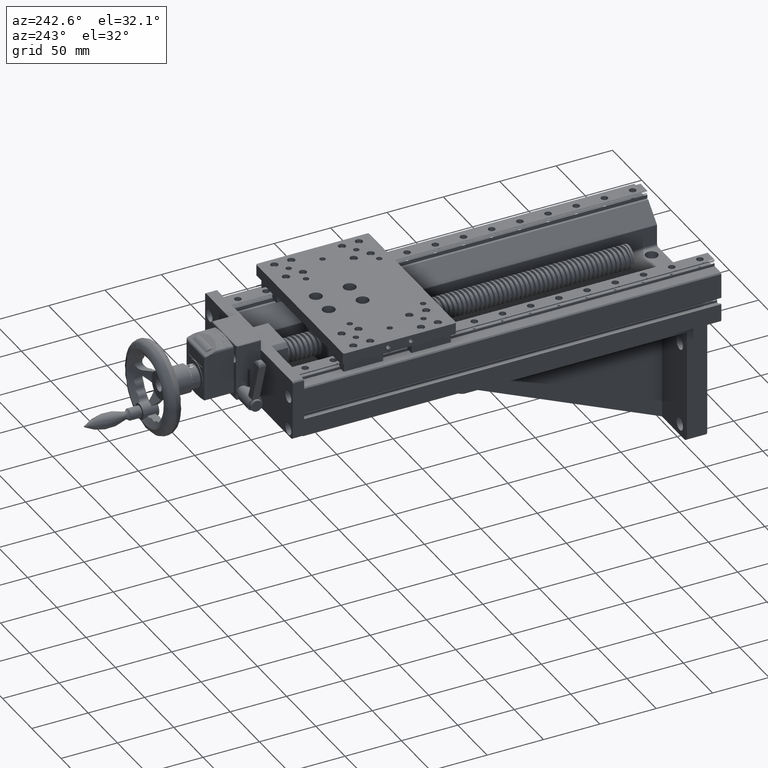
[diagram: clean part render]
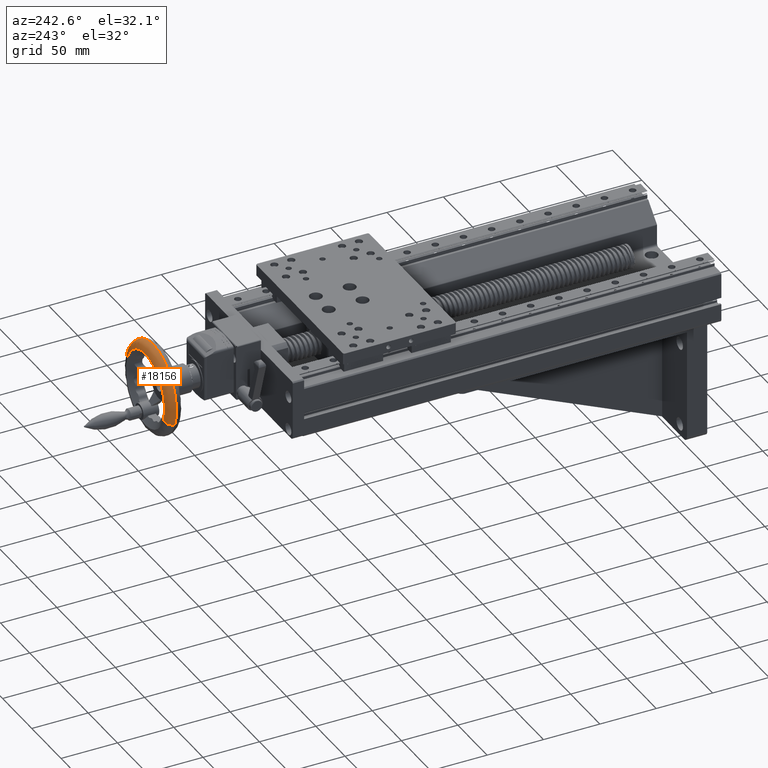
[diagram: same view with one face highlighted and labeled with its STEP entity id]
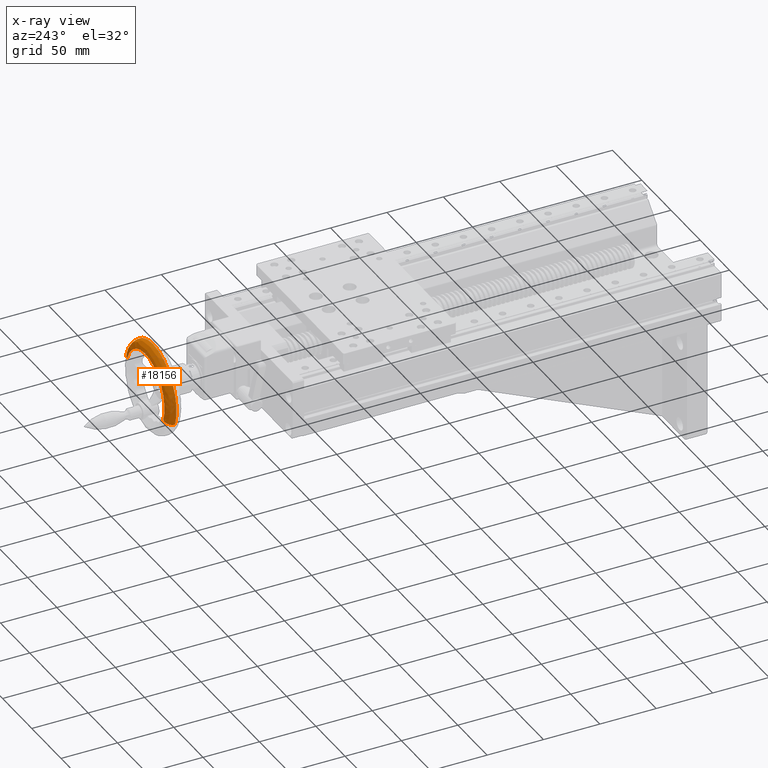
[diagram: x-ray of the same camera — body ghosted, the highlighted face saturated]
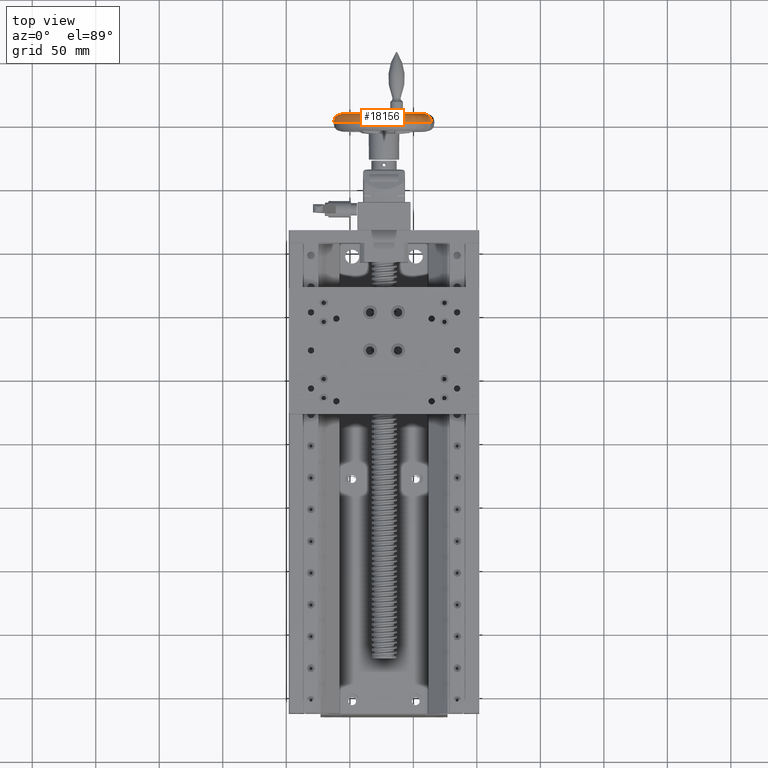
[diagram: same view with one face highlighted and labeled with its STEP entity id]
A machine part, auxiliary view. The second image highlights one B-rep face of the part: STEP entity #18156.
The next image is the same camera in x-ray: the body ghosted, the highlighted face saturated — about 0% of this face is hidden behind the body in this view.
A second angle (top view) of the same face is appended — the face is thin or edge-on in the first view.
In plain terms, the highlighted face is a freeform B-spline surface patch.
Its self-contained STEP definition (entity closure, byte-faithful):
#609 = CARTESIAN_POINT ( 'NONE',  ( 14.34957477565198403, 350.7865302544038855, 106.6083580162757158 ) ) ;
#1547 = EDGE_CURVE ( 'NONE', #24933, #31064, #36026, .T. ) ;
#3617 = EDGE_CURVE ( 'NONE', #24933, #4588, #30933, .T. ) ;
#4588 = VERTEX_POINT ( 'NONE', #14850 ) ;
#4904 = CARTESIAN_POINT ( 'NONE',  ( 7.799443218282354096, 357.7865302544038855, 104.1393953634281786 ) ) ;
#5541 = CARTESIAN_POINT ( 'NONE',  ( -60.50907159428248150, 350.7865302544039992, 78.39164198373393333 ) ) ;
#5575 = CARTESIAN_POINT ( 'NONE',  ( -23.07974840931524696, 357.7865302544039423, 92.50000000000483169 ) ) ;
#5912 = CARTESIAN_POINT ( 'NONE',  ( -60.50907159428248150, 354.8870353177923676, 78.39164198373394754 ) ) ;
#7294 = CARTESIAN_POINT ( 'NONE',  ( 11.63642144926143907, 357.7865302544040560, 105.5856802004735755 ) ) ;
#7304 = CARTESIAN_POINT ( 'NONE',  ( -23.07974840931525407, 350.7865302544039423, 92.50000000000483169 ) ) ;
#8153 = CARTESIAN_POINT ( 'NONE',  ( -77.23773076375952940, 357.7865302544038855, 142.6189878917766691 ) ) ;
#8295 = CARTESIAN_POINT ( 'NONE',  ( -53.95894003691321217, 350.7865302544038855, 80.86060463658134267 ) ) ;
#8564 = ORIENTED_EDGE ( 'NONE', *, *, #1547, .F. ) ;
#8679 = ORIENTED_EDGE ( 'NONE', *, *, #3617, .T. ) ;
#9006 = VERTEX_POINT ( 'NONE', #25116 ) ;
#9859 = CARTESIAN_POINT ( 'NONE',  ( -13.86714125688975585, 354.8870353177924244, 181.4670043862101636 ) ) ;
#10050 =( BOUNDED_SURFACE ( )  B_SPLINE_SURFACE ( 3, 3, ( 
 ( #45491, #27598, #24324, #10319 ),
 ( #23602, #9859, #37941, #5912 ),
 ( #7294, #25020, #35572, #22593 ),
 ( #4904, #39120, #8153, #36902 ) ),
 .UNSPECIFIED., .F., .F., .F. ) 
 B_SPLINE_SURFACE_WITH_KNOTS ( ( 4, 4 ),
 ( 4, 4 ),
 ( 0.000000000000000000, 1.000000000000000000 ),
 ( 0.000000000000000000, 1.000000000000000000 ),
 .UNSPECIFIED. ) 
 GEOMETRIC_REPRESENTATION_ITEM ( )  RATIONAL_B_SPLINE_SURFACE ( (
 ( 1.000000000000000000, 0.3333333333333334259, 0.3333333333333334259, 1.000000000000000000),
 ( 0.8047378541243521699, 0.2682459513747841306, 0.2682459513747841306, 0.8047378541243521699),
 ( 0.8047378541243521699, 0.2682459513747841306, 0.2682459513747841306, 0.8047378541243521699),
 ( 1.000000000000000000, 0.3333333333333334259, 0.3333333333333334259, 1.000000000000000000) ) ) 
 REPRESENTATION_ITEM ( '' )  SURFACE ( )  );
#10319 = CARTESIAN_POINT ( 'NONE',  ( -60.50907159428248860, 350.7865302544038855, 78.39164198373393333 ) ) ;
#12295 = AXIS2_PLACEMENT_3D ( 'NONE', #12384, #23084, #37419 ) ;
#12384 = CARTESIAN_POINT ( 'NONE',  ( 7.799443218282711143, 350.7865302544038855, 104.1393953634283065 ) ) ;
#13017 = DIRECTION ( 'NONE',  ( -8.426399145013992197E-16, -1.000000000000000000, -4.286215660398557035E-16 ) ) ;
#13834 = DIRECTION ( 'NONE',  ( 0.9357330796241806192, -1.387778780781445281E-15, 0.3527089504067721371 ) ) ;
#14850 = CARTESIAN_POINT ( 'NONE',  ( 7.799443218282360313, 357.7865302544039992, 104.1393953634281786 ) ) ;
#15445 = EDGE_CURVE ( 'NONE', #31064, #9006, #27547, .T. ) ;
#17079 = FACE_OUTER_BOUND ( 'NONE', #44236, .T. ) ;
#18156 = ADVANCED_FACE ( 'NONE', ( #17079 ), #10050, .T. ) ;
#18334 = EDGE_CURVE ( 'NONE', #4588, #9006, #44910, .T. ) ;
#19552 = DIRECTION ( 'NONE',  ( 0.9357330796241808413, 0.000000000000000000, 0.3527089504067720260 ) ) ;
#21068 = AXIS2_PLACEMENT_3D ( 'NONE', #7304, #45978, #13834 ) ;
#22515 = DIRECTION ( 'NONE',  ( 0.3527089504067720260, 4.513089850920726316E-17, -0.9357330796241808413 ) ) ;
#22593 = CARTESIAN_POINT ( 'NONE',  ( -57.79591826789193476, 357.7865302544040560, 79.41431979953607367 ) ) ;
#23084 = DIRECTION ( 'NONE',  ( -0.3527089504067720815, -1.626065778291379822E-16, 0.9357330796241806192 ) ) ;
#23602 = CARTESIAN_POINT ( 'NONE',  ( 14.34957477565198580, 354.8870353177923676, 106.6083580162757158 ) ) ;
#24324 = CARTESIAN_POINT ( 'NONE',  ( -88.72578762682425690, 350.7865302544038855, 153.2502883536683669 ) ) ;
#24933 = VERTEX_POINT ( 'NONE', #609 ) ;
#25020 = CARTESIAN_POINT ( 'NONE',  ( -14.53493895167606276, 357.7865302544041128, 175.0180199176269582 ) ) ;
#25116 = CARTESIAN_POINT ( 'NONE',  ( -53.95894003691292795, 357.7865302544039992, 80.86060463658147057 ) ) ;
#27547 = CIRCLE ( 'NONE', #40336, 7.000000000000005329 ) ;
#27598 = CARTESIAN_POINT ( 'NONE',  ( -13.86714125688978427, 350.7865302544038855, 181.4670043862101636 ) ) ;
#27671 = ORIENTED_EDGE ( 'NONE', *, *, #18334, .T. ) ;
#30933 = CIRCLE ( 'NONE', #12295, 7.000000000000007994 ) ;
#31064 = VERTEX_POINT ( 'NONE', #5541 ) ;
#31359 = AXIS2_PLACEMENT_3D ( 'NONE', #5575, #13017, #19552 ) ;
#35572 = CARTESIAN_POINT ( 'NONE',  ( -83.96727866882943658, 357.7865302544041128, 148.8466595166894422 ) ) ;
#36026 = CIRCLE ( 'NONE', #21068, 40.00000000000001421 ) ;
#36831 = DIRECTION ( 'NONE',  ( -0.9357330796241806192, 0.000000000000000000, -0.3527089504067720260 ) ) ;
#36902 = CARTESIAN_POINT ( 'NONE',  ( -53.95894003691284269, 357.7865302544038855, 80.86060463658148478 ) ) ;
#37419 = DIRECTION ( 'NONE',  ( 0.9357330796241807302, 0.000000000000000000, 0.3527089504067719150 ) ) ;
#37941 = CARTESIAN_POINT ( 'NONE',  ( -88.72578762682424269, 354.8870353177924244, 153.2502883536684237 ) ) ;
#38208 = ORIENTED_EDGE ( 'NONE', *, *, #15445, .F. ) ;
#39120 = CARTESIAN_POINT ( 'NONE',  ( -15.47934750856433084, 357.7865302544038855, 165.8977786186233629 ) ) ;
#40336 = AXIS2_PLACEMENT_3D ( 'NONE', #8295, #22515, #36831 ) ;
#44236 = EDGE_LOOP ( 'NONE', ( #38208, #8564, #8679, #27671 ) ) ;
#44910 = CIRCLE ( 'NONE', #31359, 33.00000000000001421 ) ;
#45491 = CARTESIAN_POINT ( 'NONE',  ( 14.34957477565198580, 350.7865302544038855, 106.6083580162757158 ) ) ;
#45978 = DIRECTION ( 'NONE',  ( -8.426399145013992197E-16, -1.000000000000000000, -4.286215660398557035E-16 ) ) ;